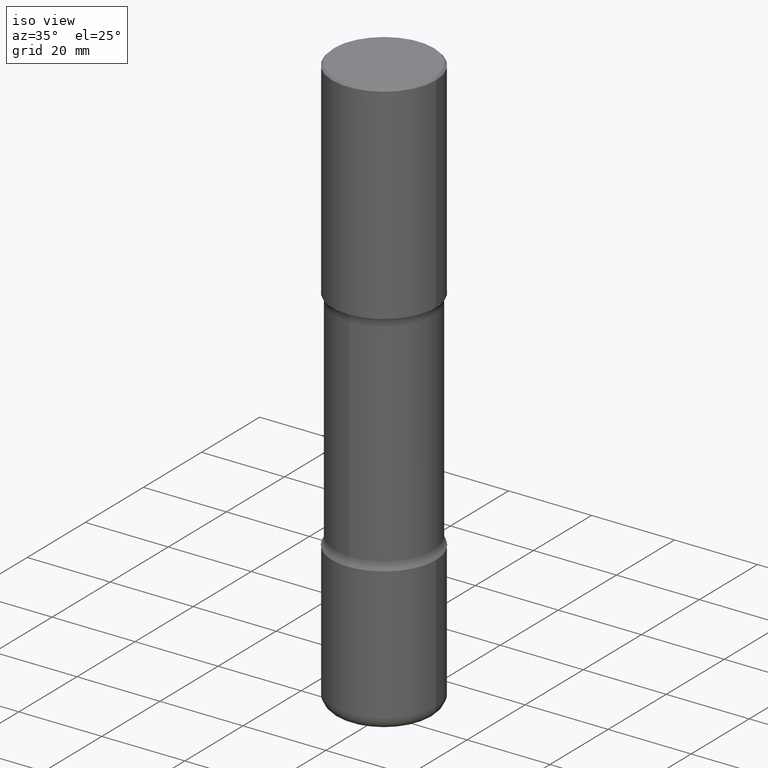
[diagram: clean part render]
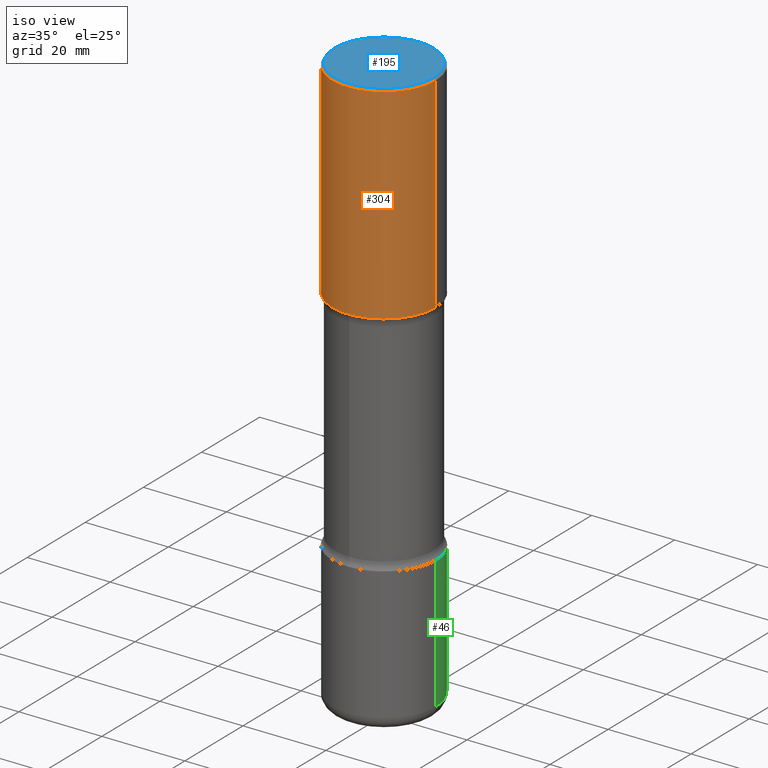
[diagram: same view with three faces highlighted in distinct colors, each labeled with its STEP entity id]
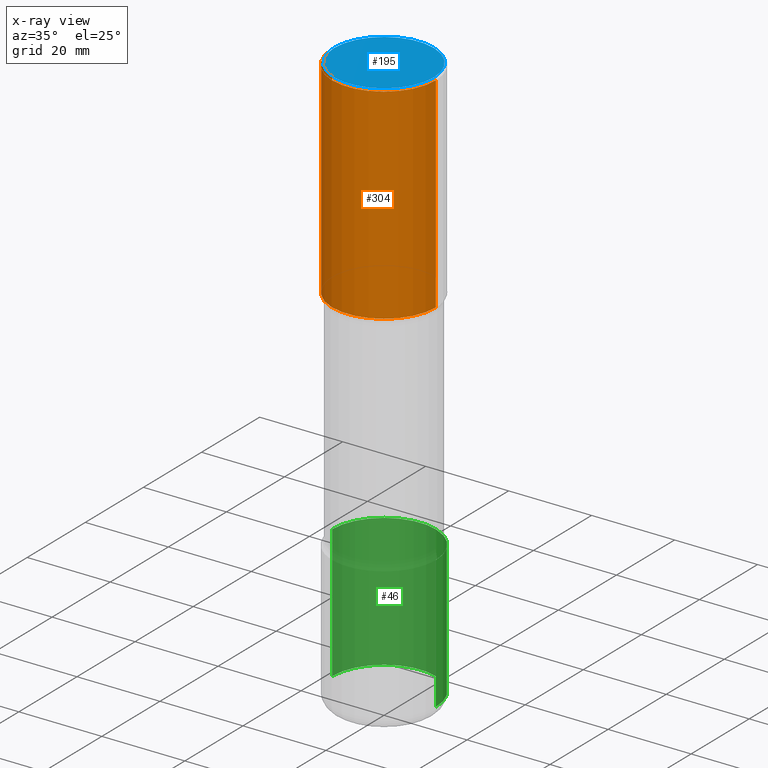
[diagram: x-ray of the same camera — body ghosted, the three highlighted faces saturated]
A machine part, iso view with three faces highlighted in distinct colors.
The next image is the same camera in x-ray (body ghosted, the three faces saturated) — at least one of them is partly hidden behind the body in this view.
Their STEP definitions:

[orange] entity #304 — the highlighted cylindrical surface (partial cylindrical patch) has radius 12.5006 mm, axis along (-0, 0, 1).
#18 = CYLINDRICAL_SURFACE ( 'NONE', #441, 0.4921500000000002539 ) ;
#21 = CARTESIAN_POINT ( 'NONE',  ( -0.4921500000000000874, 3.366835455046433267E-15, -0.02000000000000010103 ) ) ;
#51 = CIRCLE ( 'NONE', #369, 0.4921500000000000874 ) ;
#78 = CARTESIAN_POINT ( 'NONE',  ( 4.813905344975440153E-29, -6.872981015512730130E-15, -1.968499999999999472 ) ) ;
#106 = DIRECTION ( 'NONE',  ( 1.000000000000000000, -6.982962677686266711E-15, 4.876176775795935793E-29 ) ) ;
#114 = DIRECTION ( 'NONE',  ( -2.445468806185136877E-29, 3.491481338843145188E-15, 1.000000000000000000 ) ) ;
#125 = DIRECTION ( 'NONE',  ( -2.445468806185136597E-29, 3.491481338843145583E-15, 1.000000000000000000 ) ) ;
#141 = ORIENTED_EDGE ( 'NONE', *, *, #165, .T. ) ;
#163 = CARTESIAN_POINT ( 'NONE',  ( 4.890937612370298557E-31, -6.982962677686327354E-17, -0.02000000000000010103 ) ) ;
#165 = EDGE_CURVE ( 'NONE', #415, #516, #529, .T. ) ;
#171 = ORIENTED_EDGE ( 'NONE', *, *, #222, .T. ) ;
#187 = DIRECTION ( 'NONE',  ( -2.445468806185136877E-29, 3.491481338843145188E-15, 1.000000000000000000 ) ) ;
#192 = LINE ( 'NONE', #311, #349 ) ;
#193 = VECTOR ( 'NONE', #114, 39.37007874015748143 ) ;
#200 = DIRECTION ( 'NONE',  ( -2.445468806185136597E-29, 3.491481338843145583E-15, 1.000000000000000000 ) ) ;
#204 = CARTESIAN_POINT ( 'NONE',  ( 0.4921500000000003094, -1.030964609733602906E-14, -1.968499999999999472 ) ) ;
#222 = EDGE_CURVE ( 'NONE', #431, #415, #285, .T. ) ;
#225 = AXIS2_PLACEMENT_3D ( 'NONE', #78, #125, #543 ) ;
#274 = CARTESIAN_POINT ( 'NONE',  ( 0.4921500000000002539, -3.436665081823297749E-15, 2.399810400207971004E-29 ) ) ;
#285 = CIRCLE ( 'NONE', #225, 0.4921500000000003094 ) ;
#291 = ORIENTED_EDGE ( 'NONE', *, *, #372, .F. ) ;
#304 = ADVANCED_FACE ( 'NONE', ( #489 ), #18, .T. ) ;
#306 = ORIENTED_EDGE ( 'NONE', *, *, #461, .F. ) ;
#311 = CARTESIAN_POINT ( 'NONE',  ( -0.4921500000000002539, 3.496936074043334869E-15, -2.420853904668952910E-29 ) ) ;
#313 = CARTESIAN_POINT ( 'NONE',  ( 0.000000000000000000, 0.000000000000000000, 0.000000000000000000 ) ) ;
#349 = VECTOR ( 'NONE', #187, 39.37007874015748143 ) ;
#354 = VERTEX_POINT ( 'NONE', #21 ) ;
#369 = AXIS2_PLACEMENT_3D ( 'NONE', #163, #200, #456 ) ;
#372 = EDGE_CURVE ( 'NONE', #431, #354, #192, .T. ) ;
#412 = CARTESIAN_POINT ( 'NONE',  ( -0.4921500000000003650, 2.553075289854047247E-17, -1.968499999999999472 ) ) ;
#415 = VERTEX_POINT ( 'NONE', #204 ) ;
#431 = VERTEX_POINT ( 'NONE', #412 ) ;
#441 = AXIS2_PLACEMENT_3D ( 'NONE', #313, #497, #106 ) ;
#456 = DIRECTION ( 'NONE',  ( 1.000000000000000000, -6.982962677686265922E-15, 0.000000000000000000 ) ) ;
#461 = EDGE_CURVE ( 'NONE', #354, #516, #51, .T. ) ;
#487 = EDGE_LOOP ( 'NONE', ( #291, #171, #141, #306 ) ) ;
#489 = FACE_OUTER_BOUND ( 'NONE', #487, .T. ) ;
#497 = DIRECTION ( 'NONE',  ( -2.445468806185136597E-29, 3.491481338843145583E-15, 1.000000000000000000 ) ) ;
#503 = CARTESIAN_POINT ( 'NONE',  ( 0.4921500000000000874, -3.446223716380123532E-15, -0.02000000000000010103 ) ) ;
#516 = VERTEX_POINT ( 'NONE', #503 ) ;
#529 = LINE ( 'NONE', #274, #193 ) ;
#543 = DIRECTION ( 'NONE',  ( 1.000000000000000000, -6.982962677686267499E-15, 0.000000000000000000 ) ) ;

[blue] entity #195 — the highlighted planar face has unit normal (0, -0, -1).
#38 = CARTESIAN_POINT ( 'NONE',  ( -2.087702828670439639E-46, 2.980686340760894400E-32, 8.537024980200822558E-18 ) ) ;
#49 = FACE_OUTER_BOUND ( 'NONE', #478, .T. ) ;
#147 = AXIS2_PLACEMENT_3D ( 'NONE', #531, #226, #186 ) ;
#156 = DIRECTION ( 'NONE',  ( -2.445468806185136597E-29, 3.491481338843145583E-15, 1.000000000000000000 ) ) ;
#186 = DIRECTION ( 'NONE',  ( -1.000000000000000000, 6.982962677686265922E-15, -4.876176775795935793E-29 ) ) ;
#195 = ADVANCED_FACE ( 'NONE', ( #49 ), #496, .F. ) ;
#226 = DIRECTION ( 'NONE',  ( 2.438088387897960049E-29, -3.491481338843145188E-15, -1.000000000000000000 ) ) ;
#261 = ORIENTED_EDGE ( 'NONE', *, *, #447, .T. ) ;
#275 = ORIENTED_EDGE ( 'NONE', *, *, #328, .T. ) ;
#284 = DIRECTION ( 'NONE',  ( -2.445468806185136597E-29, 3.491481338843145583E-15, 1.000000000000000000 ) ) ;
#286 = AXIS2_PLACEMENT_3D ( 'NONE', #38, #284, #332 ) ;
#305 = CARTESIAN_POINT ( 'NONE',  ( 0.4721500000000000696, -3.342703923013975763E-15, 8.537024980224040028E-18 ) ) ;
#328 = EDGE_CURVE ( 'NONE', #505, #396, #407, .T. ) ;
#332 = DIRECTION ( 'NONE',  ( 1.000000000000000000, -6.982962677686266711E-15, 4.876006802227158492E-29 ) ) ;
#359 = AXIS2_PLACEMENT_3D ( 'NONE', #410, #156, #538 ) ;
#396 = VERTEX_POINT ( 'NONE', #305 ) ;
#407 = CIRCLE ( 'NONE', #359, 0.4721500000000000696 ) ;
#410 = CARTESIAN_POINT ( 'NONE',  ( -2.087702828670439639E-46, 2.980686340760894400E-32, 8.537024980200822558E-18 ) ) ;
#447 = EDGE_CURVE ( 'NONE', #396, #505, #548, .T. ) ;
#478 = EDGE_LOOP ( 'NONE', ( #275, #261 ) ) ;
#496 = PLANE ( 'NONE',  #147 ) ;
#505 = VERTEX_POINT ( 'NONE', #560 ) ;
#531 = CARTESIAN_POINT ( 'NONE',  ( 3.297005828269570364E-15, 0.4721500000000000696, -1.644234401644690869E-15 ) ) ;
#538 = DIRECTION ( 'NONE',  ( 1.000000000000000000, -6.982962677686266711E-15, 4.876006802227158492E-29 ) ) ;
#548 = CIRCLE ( 'NONE', #286, 0.4721500000000000696 ) ;
#560 = CARTESIAN_POINT ( 'NONE',  ( -0.4721500000000000696, 3.331920641658002013E-15, 8.537024980177643606E-18 ) ) ;

[green] entity #46 — the highlighted cylindrical surface (partial cylindrical patch) has radius 12.5006 mm, axis along (-0, 0, 1).
#12 = DIRECTION ( 'NONE',  ( 1.000000000000000000, -6.982962677686265922E-15, 4.876176775795935793E-29 ) ) ;
#25 = CARTESIAN_POINT ( 'NONE',  ( 0.4921500000000001984, -1.786975064033309297E-14, -4.133799999999999919 ) ) ;
#43 = ORIENTED_EDGE ( 'NONE', *, *, #235, .T. ) ;
#46 = ADVANCED_FACE ( 'NONE', ( #483 ), #98, .T. ) ;
#50 = AXIS2_PLACEMENT_3D ( 'NONE', #54, #393, #12 ) ;
#54 = CARTESIAN_POINT ( 'NONE',  ( 0.000000000000000000, 0.000000000000000000, 0.000000000000000000 ) ) ;
#55 = ORIENTED_EDGE ( 'NONE', *, *, #315, .F. ) ;
#67 = DIRECTION ( 'NONE',  ( -2.445468806185136877E-29, 3.491481338843145188E-15, 1.000000000000000000 ) ) ;
#98 = CYLINDRICAL_SURFACE ( 'NONE', #50, 0.4921500000000000874 ) ;
#122 = AXIS2_PLACEMENT_3D ( 'NONE', #150, #271, #318 ) ;
#135 = DIRECTION ( 'NONE',  ( -2.445468806185136877E-29, 3.491481338843145188E-15, 1.000000000000000000 ) ) ;
#150 = CARTESIAN_POINT ( 'NONE',  ( 1.010907895100811684E-28, -1.443308555850979562E-14, -4.133799999999999919 ) ) ;
#155 = VERTEX_POINT ( 'NONE', #414 ) ;
#189 = CARTESIAN_POINT ( 'NONE',  ( -0.4921500000000002539, -1.313560815387070066E-14, -4.133799999999999919 ) ) ;
#203 = VERTEX_POINT ( 'NONE', #189 ) ;
#218 = LINE ( 'NONE', #477, #368 ) ;
#230 = DIRECTION ( 'NONE',  ( -2.445468806185136597E-29, 3.491481338843145583E-15, 1.000000000000000000 ) ) ;
#232 = ORIENTED_EDGE ( 'NONE', *, *, #355, .T. ) ;
#235 = EDGE_CURVE ( 'NONE', #155, #203, #218, .T. ) ;
#265 = CARTESIAN_POINT ( 'NONE',  ( 0.4921500000000000874, -3.436665081823296565E-15, 2.399810400207970163E-29 ) ) ;
#269 = CIRCLE ( 'NONE', #122, 0.4921500000000001984 ) ;
#271 = DIRECTION ( 'NONE',  ( -2.445468806185136597E-29, 3.491481338843145583E-15, 1.000000000000000000 ) ) ;
#298 = VERTEX_POINT ( 'NONE', #25 ) ;
#315 = EDGE_CURVE ( 'NONE', #435, #298, #352, .T. ) ;
#318 = DIRECTION ( 'NONE',  ( 1.000000000000000000, -6.982962677686267499E-15, 0.000000000000000000 ) ) ;
#321 = AXIS2_PLACEMENT_3D ( 'NONE', #501, #230, #439 ) ;
#341 = EDGE_CURVE ( 'NONE', #298, #203, #269, .T. ) ;
#352 = LINE ( 'NONE', #265, #460 ) ;
#355 = EDGE_CURVE ( 'NONE', #435, #155, #519, .T. ) ;
#368 = VECTOR ( 'NONE', #135, 39.37007874015748143 ) ;
#393 = DIRECTION ( 'NONE',  ( -2.445468806185136597E-29, 3.491481338843145583E-15, 1.000000000000000000 ) ) ;
#403 = EDGE_LOOP ( 'NONE', ( #232, #43, #539, #55 ) ) ;
#414 = CARTESIAN_POINT ( 'NONE',  ( -0.4921500000000000874, -1.533506682327494254E-14, -5.393699999999999939 ) ) ;
#435 = VERTEX_POINT ( 'NONE', #557 ) ;
#439 = DIRECTION ( 'NONE',  ( 1.000000000000000000, -6.982962677686264344E-15, 0.000000000000000000 ) ) ;
#460 = VECTOR ( 'NONE', #67, 39.37007874015748143 ) ;
#477 = CARTESIAN_POINT ( 'NONE',  ( -0.4921500000000000874, 3.496936074043333686E-15, -2.420853904668952350E-29 ) ) ;
#483 = FACE_OUTER_BOUND ( 'NONE', #403, .T. ) ;
#501 = CARTESIAN_POINT ( 'NONE',  ( 1.319012509992077146E-28, -1.883200289731827623E-14, -5.393699999999999939 ) ) ;
#519 = CIRCLE ( 'NONE', #321, 0.4921500000000000874 ) ;
#539 = ORIENTED_EDGE ( 'NONE', *, *, #341, .F. ) ;
#557 = CARTESIAN_POINT ( 'NONE',  ( 0.4921500000000000874, -2.226866797914157358E-14, -5.393699999999999939 ) ) ;